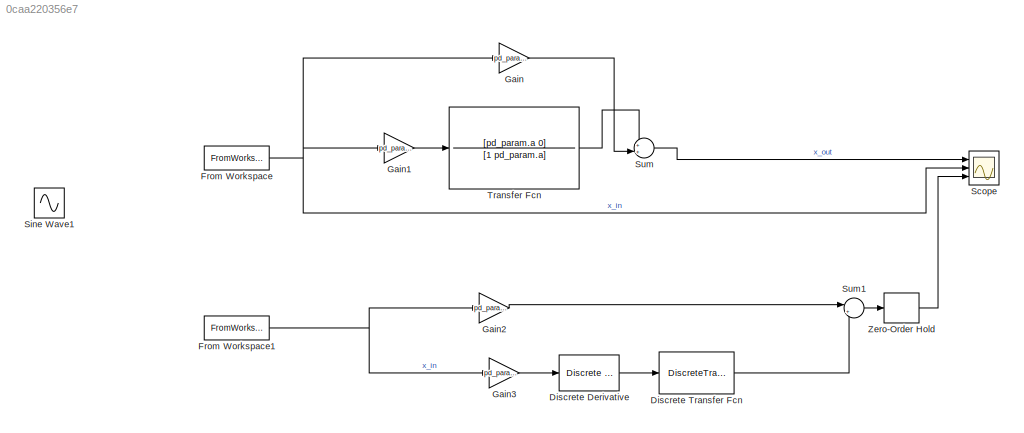
MODEL slx_0caa220356e7
KIND model
CONFIG AbsTol = auto
CONFIG EnableMultiTasking = off
CONFIG FixedStep = auto
CONFIG MaxStep = auto
CONFIG MinStep = auto
CONFIG RelTol = 1e-3
CONFIG SampleTimeConstraint = Unconstrained
CONFIG SolverName = VariableStepAuto
CONFIG StartTime = 0.0
CONFIG StopTime = 10.0
BLOCK [Reference] Discrete Derivative  REF=simulink/Discrete/Discrete Derivative
  Ports = [1, 1]
  SourceBlock = simulink/Discrete/Discrete Derivative
  SourceProductBaseCode = SL
  SourceType = Discrete Derivative
BLOCK [DiscreteTransferFcn] Discrete Transfer Fcn
  Denominator = [1 -ad]
  InputPortMap = u0
  Numerator = [(1-ad) 0]
  Ports = [1, 1]
  SampleTime = Ts
BLOCK [FromWorkspace] From Workspace
  VariableName = xd
BLOCK [FromWorkspace] From Workspace1
  VariableName = xd
BLOCK [Gain] Gain
  Gain = pd_param.Kp
BLOCK [Gain] Gain1
  Gain = pd_param.Kd
BLOCK [Gain] Gain2
  Gain = pd_param.Kp
BLOCK [Gain] Gain3
  Gain = pd_param.Kd
BLOCK [Scope] Scope
  Floating = off
  NumInputPorts = 3
  Ports = [3]
  ScopeSpecificationString = Simulink.scopes.TimeScopeBlockCfg('CurrentConfiguration', extmgr.ConfigurationSet(extmgr.Configuration('Core','General UI',true),extmgr.Configuration('Core','Source UI',true),extmgr.Configuration('Sources','WiredSimulink',true),extmgr.Configuration('Visuals','Time Domain',true,'SerializedDisplays',{struct('MinYLimReal','-1.25001','MaxYLimReal','1.25001','YLabelReal','','MinYLimMag','0.00000','MaxY...<+1377ch>
BLOCK [Sin] Sine Wave1
  Frequency = 50
  Ports = [0, 1]
  SampleTime = 0
BLOCK [Sum] Sum
  Inputs = ++|
  Ports = [2, 1]
BLOCK [Sum] Sum1
  Inputs = |++
  Ports = [2, 1]
BLOCK [TransferFcn] Transfer Fcn
  Denominator = [1 pd_param.a]
  Numerator = [pd_param.a 0]
BLOCK [ZeroOrderHold] Zero-Order Hold
  SampleTime = -1
LINE Discrete Derivative:1 -> Discrete Transfer Fcn:1
LINE Discrete Transfer Fcn:1 -> Sum1:2
NET From Workspace1:1 -> Gain2:1, Gain3:1
NET From Workspace:1 -> Gain1:1, Gain:1, Scope:2
LINE Gain1:1 -> Transfer Fcn:1
LINE Gain2:1 -> Sum1:1
LINE Gain3:1 -> Discrete Derivative:1
LINE Gain:1 -> Sum:2
LINE Sum1:1 -> Zero-Order Hold:1
LINE Sum:1 -> Scope:1
LINE Transfer Fcn:1 -> Sum:1
LINE Zero-Order Hold:1 -> Scope:3
note: NET lines group one-source signal fan-out (src -> all destinations, sorted); 1:1 wires keep LINE
